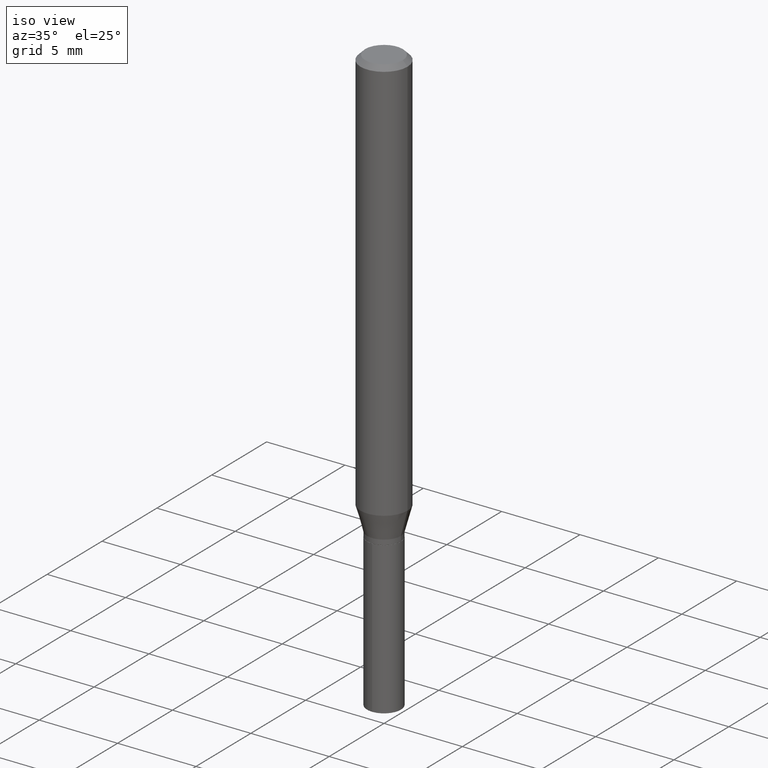
[diagram: clean part render]
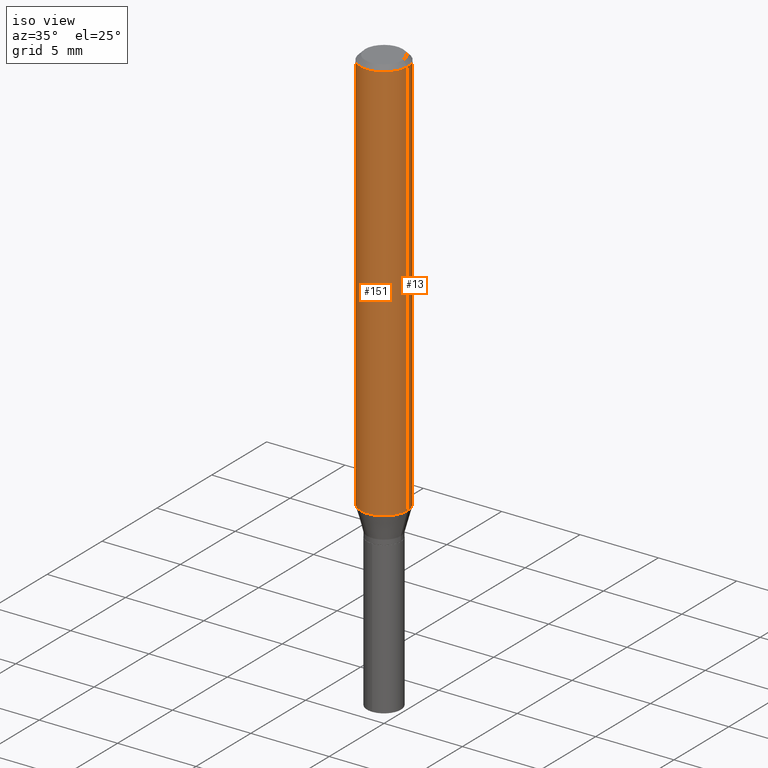
[diagram: same view with one multi-face feature highlighted, each face labeled with its STEP entity id]
A machine part, iso view. The highlighted faces form ONE feature: a constant-radius fillet chain: 2 tangent blend faces with common blend radius 1.4999 mm. The faces share edges in the B-rep.
Their STEP definitions:
[1] entity #151 (Cylinder):
#3 = FACE_OUTER_BOUND ( 'NONE', #355, .T. ) ;
#17 = ORIENTED_EDGE ( 'NONE', *, *, #273, .F. ) ;
#31 = CARTESIAN_POINT ( 'NONE',  ( 0.05905000000000006771, -4.123439461173745257E-16, 2.879382386107503723E-30 ) ) ;
#38 = AXIS2_PLACEMENT_3D ( 'NONE', #83, #399, #246 ) ;
#52 = DIRECTION ( 'NONE',  ( -2.445468806185136597E-29, 3.491481338843145583E-15, 1.000000000000000000 ) ) ;
#71 = LINE ( 'NONE', #31, #80 ) ;
#80 = VECTOR ( 'NONE', #179, 39.37007874015748143 ) ;
#83 = CARTESIAN_POINT ( 'NONE',  ( 2.888098660104663766E-31, -4.123439461173779647E-17, -0.01181000000000007044 ) ) ;
#110 = DIRECTION ( 'NONE',  ( 1.000000000000000000, -6.982962677686266711E-15, 4.876176775795936353E-29 ) ) ;
#129 = VERTEX_POINT ( 'NONE', #170 ) ;
#143 = CYLINDRICAL_SURFACE ( 'NONE', #243, 0.05905000000000006771 ) ;
#151 = ADVANCED_FACE ( 'NONE', ( #3 ), #143, .T. ) ;
#170 = CARTESIAN_POINT ( 'NONE',  ( 0.05905000000000013016, -3.973426426177510794E-15, -1.019934559134734409 ) ) ;
#179 = DIRECTION ( 'NONE',  ( -2.445468806185136877E-29, 3.491481338843145188E-15, 1.000000000000000000 ) ) ;
#193 = VERTEX_POINT ( 'NONE', #356 ) ;
#197 = EDGE_CURVE ( 'NONE', #409, #485, #310, .T. ) ;
#201 = AXIS2_PLACEMENT_3D ( 'NONE', #401, #52, #206 ) ;
#206 = DIRECTION ( 'NONE',  ( 1.000000000000000000, -6.982962677686265133E-15, 0.000000000000000000 ) ) ;
#217 = CARTESIAN_POINT ( 'NONE',  ( -0.05905000000000013016, -3.141506994593796381E-15, -1.019934559134734409 ) ) ;
#243 = AXIS2_PLACEMENT_3D ( 'NONE', #388, #460, #110 ) ;
#246 = DIRECTION ( 'NONE',  ( 1.000000000000000000, -6.982962677686267499E-15, 0.000000000000000000 ) ) ;
#273 = EDGE_CURVE ( 'NONE', #485, #193, #336, .T. ) ;
#297 = CIRCLE ( 'NONE', #201, 0.05905000000000013016 ) ;
#310 = LINE ( 'NONE', #385, #371 ) ;
#321 = CARTESIAN_POINT ( 'NONE',  ( -0.05905000000000000526, -1.381582951869596914E-15, -0.01181000000000007044 ) ) ;
#336 = CIRCLE ( 'NONE', #38, 0.05905000000000000526 ) ;
#355 = EDGE_LOOP ( 'NONE', ( #466, #444, #477, #17 ) ) ;
#356 = CARTESIAN_POINT ( 'NONE',  ( 0.05905000000000000526, -4.535783407291118600E-16, -0.01181000000000007044 ) ) ;
#371 = VECTOR ( 'NONE', #489, 39.37007874015748143 ) ;
#378 = EDGE_CURVE ( 'NONE', #409, #129, #297, .T. ) ;
#385 = CARTESIAN_POINT ( 'NONE',  ( -0.05905000000000006771, 4.195754854663396409E-16, -2.904631170795525045E-30 ) ) ;
#388 = CARTESIAN_POINT ( 'NONE',  ( 0.000000000000000000, 0.000000000000000000, 0.000000000000000000 ) ) ;
#399 = DIRECTION ( 'NONE',  ( -2.445468806185136597E-29, 3.491481338843145583E-15, 1.000000000000000000 ) ) ;
#401 = CARTESIAN_POINT ( 'NONE',  ( 2.494218148714182999E-29, -3.561082480060135874E-15, -1.019934559134734409 ) ) ;
#409 = VERTEX_POINT ( 'NONE', #217 ) ;
#444 = ORIENTED_EDGE ( 'NONE', *, *, #378, .T. ) ;
#460 = DIRECTION ( 'NONE',  ( -2.445468806185136597E-29, 3.491481338843145583E-15, 1.000000000000000000 ) ) ;
#466 = ORIENTED_EDGE ( 'NONE', *, *, #197, .F. ) ;
#477 = ORIENTED_EDGE ( 'NONE', *, *, #479, .T. ) ;
#479 = EDGE_CURVE ( 'NONE', #129, #193, #71, .T. ) ;
#485 = VERTEX_POINT ( 'NONE', #321 ) ;
#489 = DIRECTION ( 'NONE',  ( -2.445468806185136877E-29, 3.491481338843145188E-15, 1.000000000000000000 ) ) ;
[2] entity #13 (Cylinder):
#11 = ORIENTED_EDGE ( 'NONE', *, *, #197, .T. ) ;
#13 = ADVANCED_FACE ( 'NONE', ( #483 ), #130, .T. ) ;
#20 = CARTESIAN_POINT ( 'NONE',  ( 2.888098660104663766E-31, -4.123439461173779647E-17, -0.01181000000000007044 ) ) ;
#31 = CARTESIAN_POINT ( 'NONE',  ( 0.05905000000000006771, -4.123439461173745257E-16, 2.879382386107503723E-30 ) ) ;
#71 = LINE ( 'NONE', #31, #80 ) ;
#80 = VECTOR ( 'NONE', #179, 39.37007874015748143 ) ;
#93 = DIRECTION ( 'NONE',  ( -2.445468806185136597E-29, 3.491481338843145583E-15, 1.000000000000000000 ) ) ;
#120 = DIRECTION ( 'NONE',  ( 1.000000000000000000, -6.982962677686267499E-15, 0.000000000000000000 ) ) ;
#129 = VERTEX_POINT ( 'NONE', #170 ) ;
#130 = CYLINDRICAL_SURFACE ( 'NONE', #391, 0.05905000000000006771 ) ;
#131 = CARTESIAN_POINT ( 'NONE',  ( 2.494218148714182999E-29, -3.561082480060135874E-15, -1.019934559134734409 ) ) ;
#170 = CARTESIAN_POINT ( 'NONE',  ( 0.05905000000000013016, -3.973426426177510794E-15, -1.019934559134734409 ) ) ;
#171 = CIRCLE ( 'NONE', #182, 0.05905000000000000526 ) ;
#177 = EDGE_LOOP ( 'NONE', ( #374, #11, #352, #189 ) ) ;
#179 = DIRECTION ( 'NONE',  ( -2.445468806185136877E-29, 3.491481338843145188E-15, 1.000000000000000000 ) ) ;
#182 = AXIS2_PLACEMENT_3D ( 'NONE', #20, #309, #120 ) ;
#189 = ORIENTED_EDGE ( 'NONE', *, *, #479, .F. ) ;
#193 = VERTEX_POINT ( 'NONE', #356 ) ;
#197 = EDGE_CURVE ( 'NONE', #409, #485, #310, .T. ) ;
#217 = CARTESIAN_POINT ( 'NONE',  ( -0.05905000000000013016, -3.141506994593796381E-15, -1.019934559134734409 ) ) ;
#221 = DIRECTION ( 'NONE',  ( -2.445468806185136597E-29, 3.491481338843145583E-15, 1.000000000000000000 ) ) ;
#245 = DIRECTION ( 'NONE',  ( 1.000000000000000000, -6.982962677686266711E-15, 4.876176775795936353E-29 ) ) ;
#290 = EDGE_CURVE ( 'NONE', #129, #409, #306, .T. ) ;
#306 = CIRCLE ( 'NONE', #487, 0.05905000000000013016 ) ;
#309 = DIRECTION ( 'NONE',  ( -2.445468806185136597E-29, 3.491481338843145583E-15, 1.000000000000000000 ) ) ;
#310 = LINE ( 'NONE', #385, #371 ) ;
#318 = CARTESIAN_POINT ( 'NONE',  ( 0.000000000000000000, 0.000000000000000000, 0.000000000000000000 ) ) ;
#321 = CARTESIAN_POINT ( 'NONE',  ( -0.05905000000000000526, -1.381582951869596914E-15, -0.01181000000000007044 ) ) ;
#352 = ORIENTED_EDGE ( 'NONE', *, *, #363, .F. ) ;
#356 = CARTESIAN_POINT ( 'NONE',  ( 0.05905000000000000526, -4.535783407291118600E-16, -0.01181000000000007044 ) ) ;
#363 = EDGE_CURVE ( 'NONE', #193, #485, #171, .T. ) ;
#371 = VECTOR ( 'NONE', #489, 39.37007874015748143 ) ;
#374 = ORIENTED_EDGE ( 'NONE', *, *, #290, .T. ) ;
#385 = CARTESIAN_POINT ( 'NONE',  ( -0.05905000000000006771, 4.195754854663396409E-16, -2.904631170795525045E-30 ) ) ;
#391 = AXIS2_PLACEMENT_3D ( 'NONE', #318, #221, #245 ) ;
#408 = DIRECTION ( 'NONE',  ( 1.000000000000000000, -6.982962677686265133E-15, 0.000000000000000000 ) ) ;
#409 = VERTEX_POINT ( 'NONE', #217 ) ;
#479 = EDGE_CURVE ( 'NONE', #129, #193, #71, .T. ) ;
#483 = FACE_OUTER_BOUND ( 'NONE', #177, .T. ) ;
#485 = VERTEX_POINT ( 'NONE', #321 ) ;
#487 = AXIS2_PLACEMENT_3D ( 'NONE', #131, #93, #408 ) ;
#489 = DIRECTION ( 'NONE',  ( -2.445468806185136877E-29, 3.491481338843145188E-15, 1.000000000000000000 ) ) ;